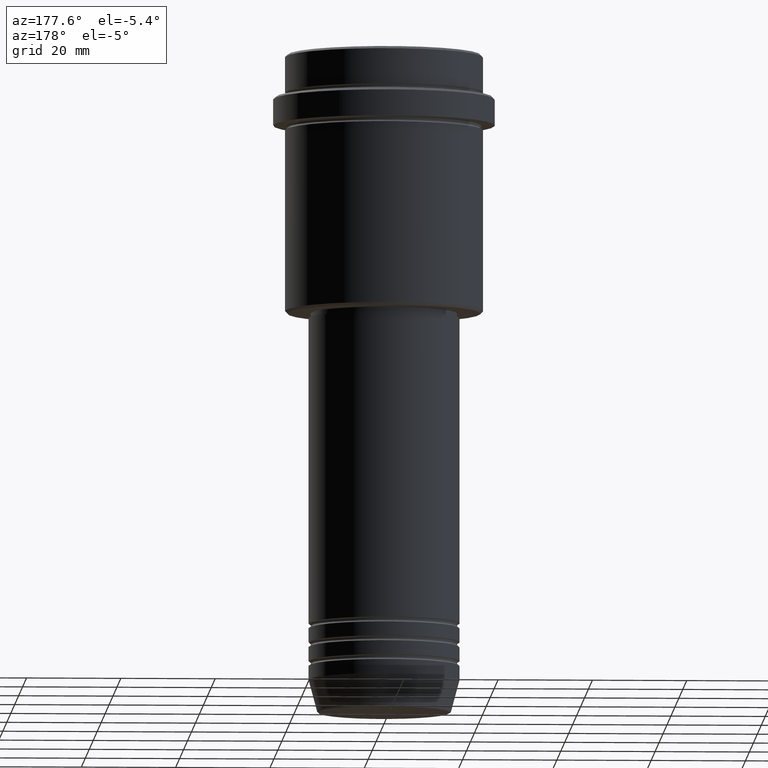
[diagram: clean part render]
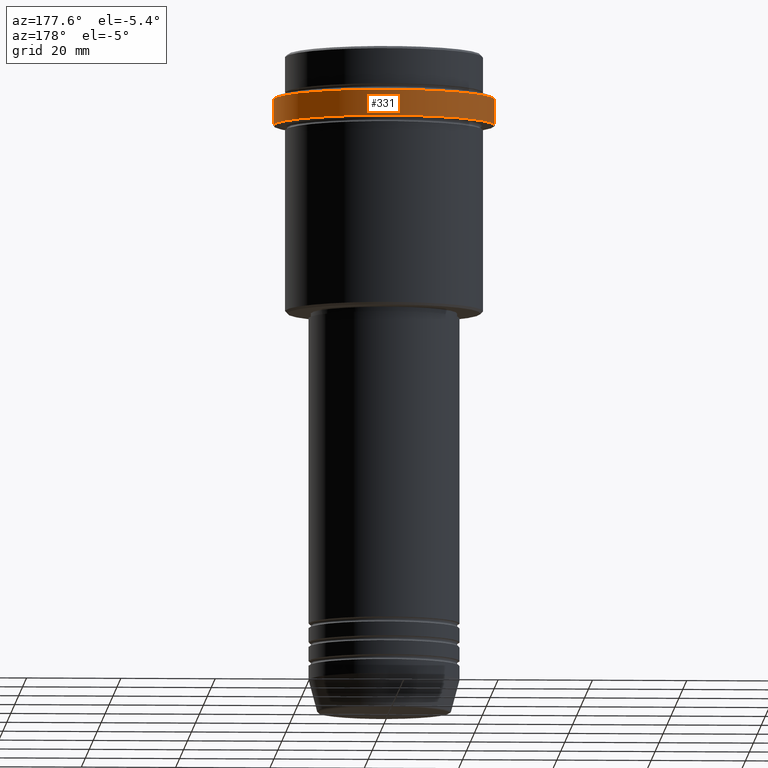
[diagram: same view with one face highlighted and labeled with its STEP entity id]
A machine part, auxiliary view. The second image highlights one B-rep face of the part: STEP entity #331.
In plain terms, the highlighted cylindrical surface (partial cylindrical patch) has radius 23.5 mm, axis along (-0, -0, 1).
Its self-contained STEP definition (entity closure, byte-faithful):
#14 = CARTESIAN_POINT ( 'NONE',  ( 0.000000000000000000, 0.000000000000000000, 0.000000000000000000 ) ) ;
#16 = DIRECTION ( 'NONE',  ( -0.000000000000000000, -0.000000000000000000, 1.000000000000000000 ) ) ;
#26 = CARTESIAN_POINT ( 'NONE',  ( -23.50000000000000000, 2.877919977996280320E-15, 0.000000000000000000 ) ) ;
#70 = VECTOR ( 'NONE', #1391, 1000.000000000000000 ) ;
#95 = VERTEX_POINT ( 'NONE', #891 ) ;
#106 = VERTEX_POINT ( 'NONE', #747 ) ;
#114 = CARTESIAN_POINT ( 'NONE',  ( 0.000000000000000000, 0.000000000000000000, -15.00000000000000000 ) ) ;
#222 = VERTEX_POINT ( 'NONE', #1323 ) ;
#311 = EDGE_CURVE ( 'NONE', #95, #1390, #660, .T. ) ;
#331 = ADVANCED_FACE ( 'NONE', ( #1093 ), #569, .T. ) ;
#337 = DIRECTION ( 'NONE',  ( 1.000000000000000000, 0.000000000000000000, 0.000000000000000000 ) ) ;
#348 = ORIENTED_EDGE ( 'NONE', *, *, #588, .T. ) ;
#370 = ORIENTED_EDGE ( 'NONE', *, *, #478, .T. ) ;
#478 = EDGE_CURVE ( 'NONE', #222, #1390, #1070, .T. ) ;
#569 = CYLINDRICAL_SURFACE ( 'NONE', #1136, 23.50000000000000000 ) ;
#588 = EDGE_CURVE ( 'NONE', #106, #222, #1007, .T. ) ;
#634 = CARTESIAN_POINT ( 'NONE',  ( 23.50000000000000000, 0.000000000000000000, -9.499999999999985789 ) ) ;
#638 = AXIS2_PLACEMENT_3D ( 'NONE', #114, #16, #337 ) ;
#660 = LINE ( 'NONE', #917, #70 ) ;
#685 = DIRECTION ( 'NONE',  ( 1.000000000000000000, 0.000000000000000000, 0.000000000000000000 ) ) ;
#747 = CARTESIAN_POINT ( 'NONE',  ( -23.50000000000000711, 2.877919977996281109E-15, -15.00000000000000000 ) ) ;
#753 = VECTOR ( 'NONE', #998, 1000.000000000000000 ) ;
#760 = ORIENTED_EDGE ( 'NONE', *, *, #311, .F. ) ;
#817 = EDGE_LOOP ( 'NONE', ( #1272, #348, #370, #760 ) ) ;
#891 = CARTESIAN_POINT ( 'NONE',  ( 23.50000000000000355, 0.000000000000000000, -15.00000000000000000 ) ) ;
#895 = DIRECTION ( 'NONE',  ( -0.000000000000000000, -0.000000000000000000, 1.000000000000000000 ) ) ;
#917 = CARTESIAN_POINT ( 'NONE',  ( 23.50000000000000000, 0.000000000000000000, 0.000000000000000000 ) ) ;
#976 = DIRECTION ( 'NONE',  ( 1.000000000000000000, 0.000000000000000000, 0.000000000000000000 ) ) ;
#998 = DIRECTION ( 'NONE',  ( -0.000000000000000000, -0.000000000000000000, 1.000000000000000000 ) ) ;
#1007 = LINE ( 'NONE', #26, #753 ) ;
#1013 = AXIS2_PLACEMENT_3D ( 'NONE', #1062, #1271, #976 ) ;
#1060 = EDGE_CURVE ( 'NONE', #95, #106, #1273, .T. ) ;
#1062 = CARTESIAN_POINT ( 'NONE',  ( 0.000000000000000000, 0.000000000000000000, -9.499999999999985789 ) ) ;
#1070 = CIRCLE ( 'NONE', #1013, 23.50000000000000000 ) ;
#1093 = FACE_OUTER_BOUND ( 'NONE', #817, .T. ) ;
#1136 = AXIS2_PLACEMENT_3D ( 'NONE', #14, #895, #685 ) ;
#1271 = DIRECTION ( 'NONE',  ( 0.000000000000000000, 0.000000000000000000, -1.000000000000000000 ) ) ;
#1272 = ORIENTED_EDGE ( 'NONE', *, *, #1060, .T. ) ;
#1273 = CIRCLE ( 'NONE', #638, 23.50000000000000355 ) ;
#1323 = CARTESIAN_POINT ( 'NONE',  ( -23.50000000000000000, 2.877919977996280320E-15, -9.499999999999985789 ) ) ;
#1390 = VERTEX_POINT ( 'NONE', #634 ) ;
#1391 = DIRECTION ( 'NONE',  ( -0.000000000000000000, -0.000000000000000000, 1.000000000000000000 ) ) ;